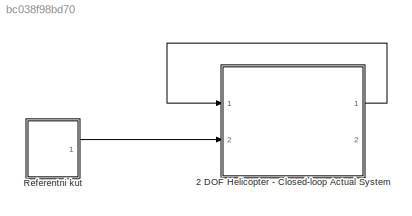
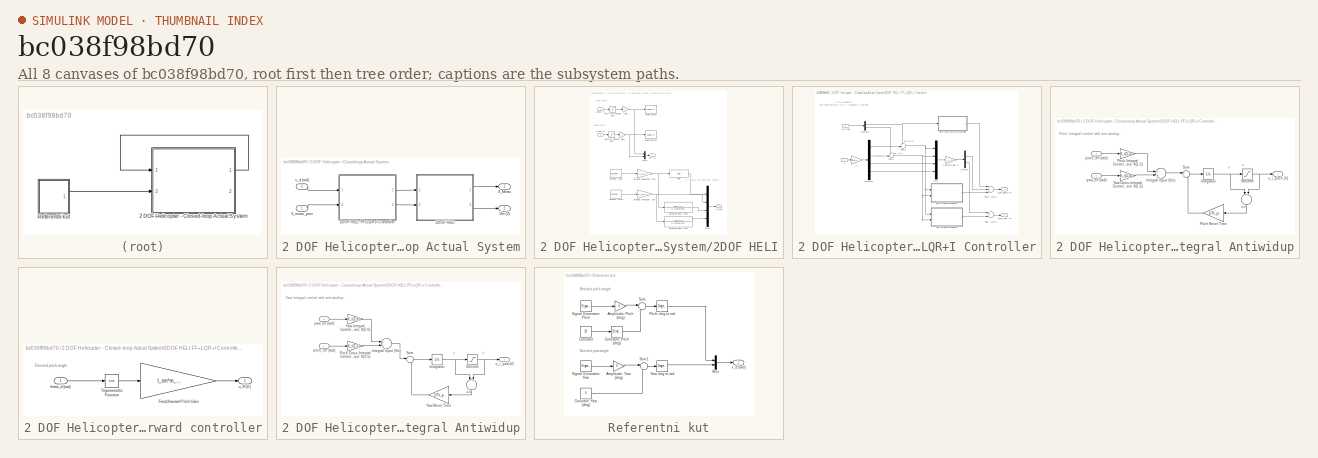
[diagram: thumbnail index - all 8 canvases of the model, root first then tree order]
MODEL slx_bc038f98bd70
KIND model
CONFIG AbsTol = auto
CONFIG EnableMultiTasking = off
CONFIG FixedStep = auto
CONFIG MaxStep = auto
CONFIG MinStep = auto
CONFIG RelTol = 1e-3
CONFIG SampleTimeConstraint = Unconstrained
CONFIG Solver = VariableStepAuto
CONFIG SolverName = VariableStepAuto
CONFIG StartTime = 0.0
CONFIG StopTime = 10.0
BLOCK [SubSystem] 2 DOF Helicopter - Closed-loop Actual System
  Ports = [2, 2]
  RequestExecContextInheritance = off
  Variant = off
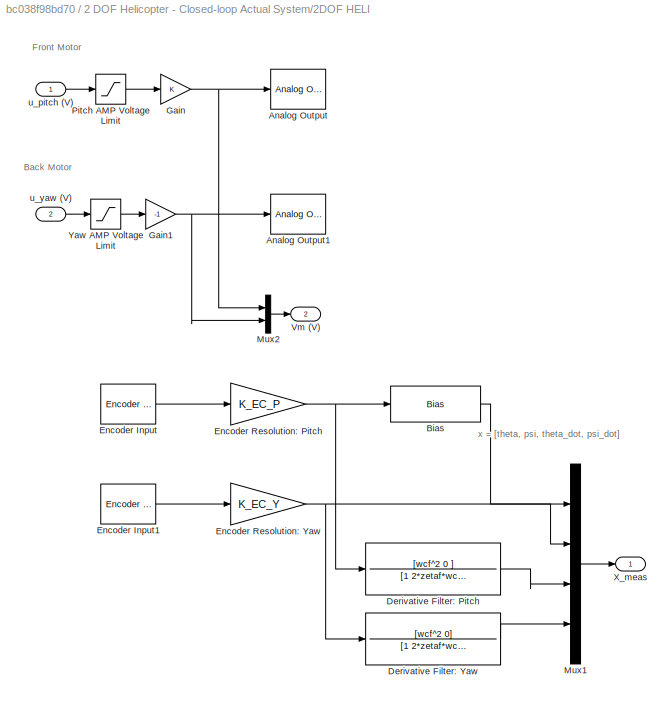
BLOCK [SubSystem] 2 DOF Helicopter - Closed-loop Actual System/2DOF HELI
  Ports = [2, 2]
  RequestExecContextInheritance = off
  Variant = off
BLOCK [Reference] 2 DOF Helicopter - Closed-loop Actual System/2DOF HELI/Analog Output  REF=sldrtlib/Analog Output
  AttributesFormatString = Quanser\nMultiQ-PCI [auto]
  Ports = [1]
  SourceBlock = sldrtlib/Analog Output
  SourceType = Simulink Desktop Real-Time Analog Output
BLOCK [Reference] 2 DOF Helicopter - Closed-loop Actual System/2DOF HELI/Analog Output1  REF=sldrtlib/Analog Output
  AttributesFormatString = Quanser\nMultiQ-PCI [auto]
  Ports = [1]
  SourceBlock = sldrtlib/Analog Output
  SourceType = Simulink Desktop Real-Time Analog Output
BLOCK [Bias] 2 DOF Helicopter - Closed-loop Actual System/2DOF HELI/Bias
  Bias = theta_0
  SaturateOnIntegerOverflow = off
BLOCK [TransferFcn] 2 DOF Helicopter - Closed-loop Actual System/2DOF HELI/Derivative Filter: Pitch
  Denominator = [1 2*zetaf*wcf wcf^2]
  Numerator = [wcf^2 0 ]
BLOCK [TransferFcn] 2 DOF Helicopter - Closed-loop Actual System/2DOF HELI/Derivative Filter: Yaw
  Denominator = [1 2*zetaf*wcf wcf^2]
  Numerator = [wcf^2 0]
BLOCK [Reference] 2 DOF Helicopter - Closed-loop Actual System/2DOF HELI/Encoder Input  REF=sldrtlib/Encoder Input
  AttributesFormatString = Quanser\nMultiQ-PCI [auto]
  Ports = [0, 1]
  SourceBlock = sldrtlib/Encoder Input
  SourceType = Simulink Desktop Real-Time Encoder Input
BLOCK [Reference] 2 DOF Helicopter - Closed-loop Actual System/2DOF HELI/Encoder Input1  REF=sldrtlib/Encoder Input
  AttributesFormatString = Quanser\nMultiQ-PCI [auto]
  Ports = [0, 1]
  SourceBlock = sldrtlib/Encoder Input
  SourceType = Simulink Desktop Real-Time Encoder Input
BLOCK [Gain] 2 DOF Helicopter - Closed-loop Actual System/2DOF HELI/Encoder Resolution: Pitch 
  Gain = K_EC_P
  OutDataTypeStr = Inherit: Inherit via internal rule
  ParamDataTypeStr = Inherit: Inherit via internal rule
  SaturateOnIntegerOverflow = off
BLOCK [Gain] 2 DOF Helicopter - Closed-loop Actual System/2DOF HELI/Encoder Resolution: Yaw
  Gain = K_EC_Y
  OutDataTypeStr = Inherit: Inherit via internal rule
  ParamDataTypeStr = Inherit: Inherit via internal rule
  SaturateOnIntegerOverflow = off
BLOCK [Gain] 2 DOF Helicopter - Closed-loop Actual System/2DOF HELI/Gain
  OutDataTypeStr = Inherit: Inherit via internal rule
  ParamDataTypeStr = Inherit: Inherit via internal rule
  SaturateOnIntegerOverflow = off
BLOCK [Gain] 2 DOF Helicopter - Closed-loop Actual System/2DOF HELI/Gain1
  Gain = -1
  OutDataTypeStr = Inherit: Inherit via internal rule
  ParamDataTypeStr = Inherit: Inherit via internal rule
  SaturateOnIntegerOverflow = off
BLOCK [Mux] 2 DOF Helicopter - Closed-loop Actual System/2DOF HELI/Mux1
  DisplayOption = bar
  Ports = [4, 1]
BLOCK [Mux] 2 DOF Helicopter - Closed-loop Actual System/2DOF HELI/Mux2
  DisplayOption = bar
  Inputs = 2
  Ports = [2, 1]
BLOCK [Saturate] 2 DOF Helicopter - Closed-loop Actual System/2DOF HELI/Pitch AMP Voltage Limit
  InputPortMap = u0
  LowerLimit = - max_u
  Ports = [1, 1]
  UpperLimit = max_u
BLOCK [Outport] 2 DOF Helicopter - Closed-loop Actual System/2DOF HELI/Vm (V)
  IconDisplay = Port number
  Port = 2
BLOCK [Outport] 2 DOF Helicopter - Closed-loop Actual System/2DOF HELI/X_meas
  IconDisplay = Port number
BLOCK [Saturate] 2 DOF Helicopter - Closed-loop Actual System/2DOF HELI/Yaw AMP Voltage Limit
  InputPortMap = u0
  LowerLimit = - max_u
  Ports = [1, 1]
  UpperLimit = max_u
BLOCK [Inport] 2 DOF Helicopter - Closed-loop Actual System/2DOF HELI/u_pitch (V)
  IconDisplay = Port number
BLOCK [Inport] 2 DOF Helicopter - Closed-loop Actual System/2DOF HELI/u_yaw (V)
  IconDisplay = Port number
  Port = 2
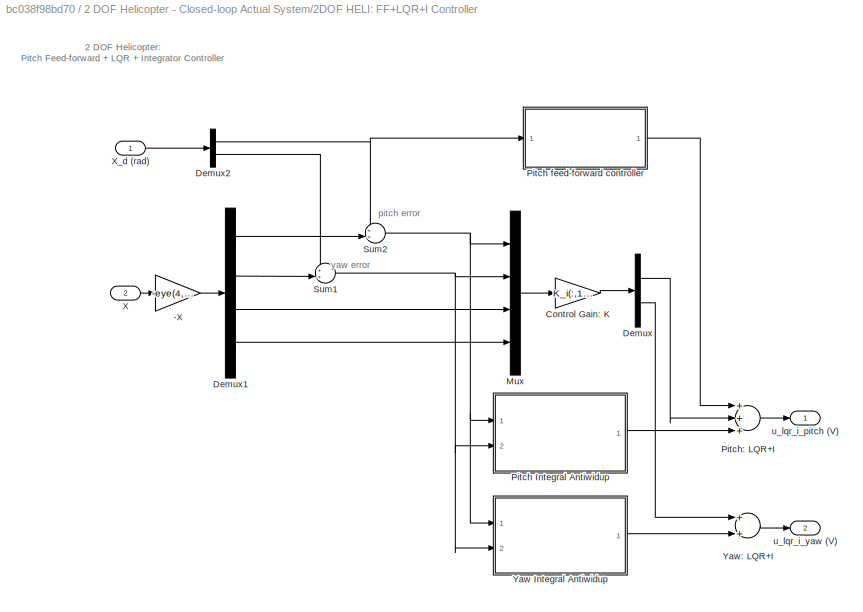
BLOCK [SubSystem] 2 DOF Helicopter - Closed-loop Actual System/2DOF HELI: FF+LQR+I Controller
  Ports = [2, 2]
  RequestExecContextInheritance = off
  Variant = off
BLOCK [Gain] 2 DOF Helicopter - Closed-loop Actual System/2DOF HELI: FF+LQR+I Controller/-X
  Gain = -eye(4,4)
  Multiplication = Matrix(K*u)
  OutDataTypeStr = Inherit: Inherit via internal rule
  ParamDataTypeStr = Inherit: Inherit via internal rule
  SaturateOnIntegerOverflow = off
BLOCK [Gain] 2 DOF Helicopter - Closed-loop Actual System/2DOF HELI: FF+LQR+I Controller/Control Gain: K
  Gain = K_i(:,1:4)
  Multiplication = Matrix(K*u)
  OutDataTypeStr = Inherit: Inherit via internal rule
  ParamDataTypeStr = Inherit: Inherit via internal rule
  SaturateOnIntegerOverflow = off
BLOCK [Demux] 2 DOF Helicopter - Closed-loop Actual System/2DOF HELI: FF+LQR+I Controller/Demux
  DisplayOption = bar
  Outputs = 2
  Ports = [1, 2]
BLOCK [Demux] 2 DOF Helicopter - Closed-loop Actual System/2DOF HELI: FF+LQR+I Controller/Demux1
  DisplayOption = bar
  Ports = [1, 4]
BLOCK [Demux] 2 DOF Helicopter - Closed-loop Actual System/2DOF HELI: FF+LQR+I Controller/Demux2
  DisplayOption = bar
  Outputs = 2
  Ports = [1, 2]
BLOCK [Mux] 2 DOF Helicopter - Closed-loop Actual System/2DOF HELI: FF+LQR+I Controller/Mux
  DisplayOption = bar
  Ports = [4, 1]
BLOCK [SubSystem] 2 DOF Helicopter - Closed-loop Actual System/2DOF HELI: FF+LQR+I Controller/Pitch Integral Antiwidup
  Ports = [2, 1]
  RequestExecContextInheritance = off
  Variant = off
BLOCK [Sum] 2 DOF Helicopter - Closed-loop Actual System/2DOF HELI: FF+LQR+I Controller/Pitch Integral Antiwidup/Integral Input (V//s)
  InputSameDT = off
  OutDataTypeStr = Inherit: Inherit via internal rule
  Ports = [2, 1]
  SaturateOnIntegerOverflow = off
BLOCK [Integrator] 2 DOF Helicopter - Closed-loop Actual System/2DOF HELI: FF+LQR+I Controller/Pitch Integral Antiwidup/Integrator
  Ports = [1, 1]
BLOCK [Gain] 2 DOF Helicopter - Closed-loop Actual System/2DOF HELI: FF+LQR+I Controller/Pitch Integral Antiwidup/Pitch Integral Control Gain: K(1,5)
  Gain = K_i(1,5)
  Multiplication = Matrix(K*u)
  OutDataTypeStr = Inherit: Inherit via internal rule
  ParamDataTypeStr = Inherit: Inherit via internal rule
  SaturateOnIntegerOverflow = off
BLOCK [Gain] 2 DOF Helicopter - Closed-loop Actual System/2DOF HELI: FF+LQR+I Controller/Pitch Integral Antiwidup/Pitch Reset Time
  Gain = 1/Tr_p
  OutDataTypeStr = Inherit: Inherit via internal rule
  ParamDataTypeStr = Inherit: Inherit via internal rule
  SaturateOnIntegerOverflow = off
BLOCK [Saturate] 2 DOF Helicopter - Closed-loop Actual System/2DOF HELI: FF+LQR+I Controller/Pitch Integral Antiwidup/Saturate
  InputPortMap = u0
  LowerLimit = -max_u
  Ports = [1, 1]
  UpperLimit = max_u
BLOCK [Sum] 2 DOF Helicopter - Closed-loop Actual System/2DOF HELI: FF+LQR+I Controller/Pitch Integral Antiwidup/Sum
  IconShape = round
  InputSameDT = off
  Inputs = |++
  OutDataTypeStr = Inherit: Inherit via internal rule
  Ports = [2, 1]
  SaturateOnIntegerOverflow = off
BLOCK [Gain] 2 DOF Helicopter - Closed-loop Actual System/2DOF HELI: FF+LQR+I Controller/Pitch Integral Antiwidup/Yaw Cross-Integral Control Gain: K(1,6)
  Gain = K_i(1,6)
  Multiplication = Matrix(K*u)
  OutDataTypeStr = Inherit: Inherit via internal rule
  ParamDataTypeStr = Inherit: Inherit via internal rule
  SaturateOnIntegerOverflow = off
BLOCK [Inport] 2 DOF Helicopter - Closed-loop Actual System/2DOF HELI: FF+LQR+I Controller/Pitch Integral Antiwidup/pitch_err (rad)
  IconDisplay = Port number
BLOCK [Sum] 2 DOF Helicopter - Closed-loop Actual System/2DOF HELI: FF+LQR+I Controller/Pitch Integral Antiwidup/u-v
  InputSameDT = off
  Inputs = -+
  OutDataTypeStr = Inherit: Inherit via internal rule
  Ports = [2, 1]
  SaturateOnIntegerOverflow = off
BLOCK [Outport] 2 DOF Helicopter - Closed-loop Actual System/2DOF HELI: FF+LQR+I Controller/Pitch Integral Antiwidup/u_i_pitch (V)
  IconDisplay = Port number
BLOCK [Inport] 2 DOF Helicopter - Closed-loop Actual System/2DOF HELI: FF+LQR+I Controller/Pitch Integral Antiwidup/yaw_err (rad)
  IconDisplay = Port number
  Port = 2
BLOCK [SubSystem] 2 DOF Helicopter - Closed-loop Actual System/2DOF HELI: FF+LQR+I Controller/Pitch feed-forward controller
  Ports = [1, 1]
  RequestExecContextInheritance = off
  Variant = off
BLOCK [Gain] 2 DOF Helicopter - Closed-loop Actual System/2DOF HELI: FF+LQR+I Controller/Pitch feed-forward controller/Feed-forward Pitch Gain
  Gain = l_cm*m_heli*g / K_pp
  OutDataTypeStr = Inherit: Inherit via internal rule
  ParamDataTypeStr = Inherit: Inherit via internal rule
  SaturateOnIntegerOverflow = off
BLOCK [Trigonometry] 2 DOF Helicopter - Closed-loop Actual System/2DOF HELI: FF+LQR+I Controller/Pitch feed-forward controller/Trigonometric Function
  Operator = cos
  OutputSignalType = real
  Ports = [1, 1]
BLOCK [Inport] 2 DOF Helicopter - Closed-loop Actual System/2DOF HELI: FF+LQR+I Controller/Pitch feed-forward controller/theta_d (rad)
  IconDisplay = Port number
BLOCK [Outport] 2 DOF Helicopter - Closed-loop Actual System/2DOF HELI: FF+LQR+I Controller/Pitch feed-forward controller/u_ff (V)
  IconDisplay = Port number
BLOCK [Sum] 2 DOF Helicopter - Closed-loop Actual System/2DOF HELI: FF+LQR+I Controller/Pitch: LQR+I
  InputSameDT = off
  Inputs = +++
  OutDataTypeStr = Inherit: Inherit via internal rule
  Ports = [3, 1]
  SaturateOnIntegerOverflow = off
BLOCK [Sum] 2 DOF Helicopter - Closed-loop Actual System/2DOF HELI: FF+LQR+I Controller/Sum1
  IconShape = round
  InputSameDT = off
  Inputs = ++|
  OutDataTypeStr = Inherit: Inherit via internal rule
  Ports = [2, 1]
  SaturateOnIntegerOverflow = off
BLOCK [Sum] 2 DOF Helicopter - Closed-loop Actual System/2DOF HELI: FF+LQR+I Controller/Sum2
  IconShape = round
  InputSameDT = off
  Inputs = ++|
  OutDataTypeStr = Inherit: Inherit via internal rule
  Ports = [2, 1]
  SaturateOnIntegerOverflow = off
BLOCK [Inport] 2 DOF Helicopter - Closed-loop Actual System/2DOF HELI: FF+LQR+I Controller/X
  IconDisplay = Port number
  Port = 2
BLOCK [Inport] 2 DOF Helicopter - Closed-loop Actual System/2DOF HELI: FF+LQR+I Controller/X_d (rad)
  IconDisplay = Port number
BLOCK [SubSystem] 2 DOF Helicopter - Closed-loop Actual System/2DOF HELI: FF+LQR+I Controller/Yaw Integral Antiwidup
  Ports = [2, 1]
  RequestExecContextInheritance = off
  Variant = off
BLOCK [Sum] 2 DOF Helicopter - Closed-loop Actual System/2DOF HELI: FF+LQR+I Controller/Yaw Integral Antiwidup/Integral Input (V//s)
  InputSameDT = off
  OutDataTypeStr = Inherit: Inherit via internal rule
  Ports = [2, 1]
  SaturateOnIntegerOverflow = off
BLOCK [Integrator] 2 DOF Helicopter - Closed-loop Actual System/2DOF HELI: FF+LQR+I Controller/Yaw Integral Antiwidup/Integrator
  Ports = [1, 1]
BLOCK [Gain] 2 DOF Helicopter - Closed-loop Actual System/2DOF HELI: FF+LQR+I Controller/Yaw Integral Antiwidup/Pitch Cross-Integral Control Gain: K(2,5)
  Gain = K_i(2,5)
  Multiplication = Matrix(K*u)
  OutDataTypeStr = Inherit: Inherit via internal rule
  ParamDataTypeStr = Inherit: Inherit via internal rule
  SaturateOnIntegerOverflow = off
BLOCK [Saturate] 2 DOF Helicopter - Closed-loop Actual System/2DOF HELI: FF+LQR+I Controller/Yaw Integral Antiwidup/Saturate
  InputPortMap = u0
  LowerLimit = -max_u
  Ports = [1, 1]
  UpperLimit = max_u
BLOCK [Sum] 2 DOF Helicopter - Closed-loop Actual System/2DOF HELI: FF+LQR+I Controller/Yaw Integral Antiwidup/Sum
  IconShape = round
  InputSameDT = off
  Inputs = |++
  OutDataTypeStr = Inherit: Inherit via internal rule
  Ports = [2, 1]
  SaturateOnIntegerOverflow = off
BLOCK [Gain] 2 DOF Helicopter - Closed-loop Actual System/2DOF HELI: FF+LQR+I Controller/Yaw Integral Antiwidup/Yaw Integral Control Gain: K(2,6)
  Gain = K_i(2,6)
  Multiplication = Matrix(K*u)
  OutDataTypeStr = Inherit: Inherit via internal rule
  ParamDataTypeStr = Inherit: Inherit via internal rule
  SaturateOnIntegerOverflow = off
BLOCK [Gain] 2 DOF Helicopter - Closed-loop Actual System/2DOF HELI: FF+LQR+I Controller/Yaw Integral Antiwidup/Yaw Reset Time
  Gain = 1/Tr_y
  OutDataTypeStr = Inherit: Inherit via internal rule
  ParamDataTypeStr = Inherit: Inherit via internal rule
  SaturateOnIntegerOverflow = off
BLOCK [Inport] 2 DOF Helicopter - Closed-loop Actual System/2DOF HELI: FF+LQR+I Controller/Yaw Integral Antiwidup/pitch_err (rad)
  IconDisplay = Port number
BLOCK [Sum] 2 DOF Helicopter - Closed-loop Actual System/2DOF HELI: FF+LQR+I Controller/Yaw Integral Antiwidup/u-v
  InputSameDT = off
  Inputs = -+
  OutDataTypeStr = Inherit: Inherit via internal rule
  Ports = [2, 1]
  SaturateOnIntegerOverflow = off
BLOCK [Outport] 2 DOF Helicopter - Closed-loop Actual System/2DOF HELI: FF+LQR+I Controller/Yaw Integral Antiwidup/u_i_yaw (V)
  IconDisplay = Port number
BLOCK [Inport] 2 DOF Helicopter - Closed-loop Actual System/2DOF HELI: FF+LQR+I Controller/Yaw Integral Antiwidup/yaw_err (rad)
  IconDisplay = Port number
  Port = 2
BLOCK [Sum] 2 DOF Helicopter - Closed-loop Actual System/2DOF HELI: FF+LQR+I Controller/Yaw: LQR+I
  InputSameDT = off
  OutDataTypeStr = Inherit: Inherit via internal rule
  Ports = [2, 1]
  SaturateOnIntegerOverflow = off
BLOCK [Outport] 2 DOF Helicopter - Closed-loop Actual System/2DOF HELI: FF+LQR+I Controller/u_lqr_i_pitch (V)
  IconDisplay = Port number
BLOCK [Outport] 2 DOF Helicopter - Closed-loop Actual System/2DOF HELI: FF+LQR+I Controller/u_lqr_i_yaw (V)
  IconDisplay = Port number
  Port = 2
BLOCK [Outport] 2 DOF Helicopter - Closed-loop Actual System/Vm (V)
  IconDisplay = Port number
  Port = 2
BLOCK [Outport] 2 DOF Helicopter - Closed-loop Actual System/X_Meas
  IconDisplay = Port number
BLOCK [Inport] 2 DOF Helicopter - Closed-loop Actual System/X_meas_prev
  IconDisplay = Port number
BLOCK [Inport] 2 DOF Helicopter - Closed-loop Actual System/x_d (rad)
  IconDisplay = Port number
  Port = 2
BLOCK [SubSystem] Referentni kut
  Ports = [0, 1]
  RequestExecContextInheritance = off
  Variant = off
BLOCK [Gain] Referentni kut/Amplitude: Pitch (deg)
  Gain = 0
  OutDataTypeStr = Inherit: Inherit via internal rule
  ParamDataTypeStr = Inherit: Inherit via internal rule
  SaturateOnIntegerOverflow = off
BLOCK [Gain] Referentni kut/Amplitude: Yaw (deg)
  Gain = 0
  OutDataTypeStr = Inherit: Inherit via internal rule
  ParamDataTypeStr = Inherit: Inherit via internal rule
  SaturateOnIntegerOverflow = off
BLOCK [Constant] Referentni kut/Constant
  Value = 20
BLOCK [Reference] Referentni kut/Constant: Pitch (deg)  REF=simulink/Math
Operations/Slider
Gain
  Ports = [1, 1]
  SourceBlock = simulink/Math\nOperations/Slider\nGain
  SourceType = Slider Gain
BLOCK [Constant] Referentni kut/Constant: Yaw (deg)
  Value = 0
BLOCK [Mux] Referentni kut/Mux
  DisplayOption = bar
  Inputs = 2
  Ports = [2, 1]
BLOCK [Reference] Referentni kut/Pitch: deg to rad  REF=simulink_extras/Transformations/Degrees to
Radians
  Ports = [1, 1]
  SourceBlock = simulink_extras/Transformations/Degrees to\nRadians
  SourceType = DegreesToRadians
BLOCK [SignalGenerator] Referentni kut/Signal Generator: Pitch
  Amplitude = 15
  Frequency = 0.05
  Ports = [0, 1]
  WaveForm = square
BLOCK [SignalGenerator] Referentni kut/Signal Generator: Yaw
  Amplitude = 30
  Frequency = 0.05
  Ports = [0, 1]
  WaveForm = square
BLOCK [Sum] Referentni kut/Sum
  IconShape = round
  InputSameDT = off
  Inputs = |++
  OutDataTypeStr = Inherit: Inherit via internal rule
  Ports = [2, 1]
  SaturateOnIntegerOverflow = off
BLOCK [Sum] Referentni kut/Sum1
  IconShape = round
  InputSameDT = off
  Inputs = |++
  OutDataTypeStr = Inherit: Inherit via internal rule
  Ports = [2, 1]
  SaturateOnIntegerOverflow = off
BLOCK [Reference] Referentni kut/Yaw: deg to rad  REF=simulink_extras/Transformations/Degrees to
Radians
  Ports = [1, 1]
  SourceBlock = simulink_extras/Transformations/Degrees to\nRadians
  SourceType = DegreesToRadians
BLOCK [Outport] Referentni kut/x_d (rad)
  IconDisplay = Port number
ANNOTATION 2 DOF Helicopter - Closed-loop Actual System/2DOF HELI: Back Motor
ANNOTATION 2 DOF Helicopter - Closed-loop Actual System/2DOF HELI: Front Motor
ANNOTATION 2 DOF Helicopter - Closed-loop Actual System/2DOF HELI: x = [theta, psi, theta_dot, psi_dot]
ANNOTATION 2 DOF Helicopter - Closed-loop Actual System/2DOF HELI: FF+LQR+I Controller: 2 DOF Helicopter: Pitch Feed-forward + LQR + Integrator Controller
ANNOTATION 2 DOF Helicopter - Closed-loop Actual System/2DOF HELI: FF+LQR+I Controller: pitch error
ANNOTATION 2 DOF Helicopter - Closed-loop Actual System/2DOF HELI: FF+LQR+I Controller: yaw error
ANNOTATION 2 DOF Helicopter - Closed-loop Actual System/2DOF HELI: FF+LQR+I Controller/Pitch Integral Antiwidup: Pitch: Integral control with anti-windup.
ANNOTATION 2 DOF Helicopter - Closed-loop Actual System/2DOF HELI: FF+LQR+I Controller/Pitch Integral Antiwidup: u
ANNOTATION 2 DOF Helicopter - Closed-loop Actual System/2DOF HELI: FF+LQR+I Controller/Pitch Integral Antiwidup: v
ANNOTATION 2 DOF Helicopter - Closed-loop Actual System/2DOF HELI: FF+LQR+I Controller/Pitch feed-forward controller: Desired pitch angle
ANNOTATION 2 DOF Helicopter - Closed-loop Actual System/2DOF HELI: FF+LQR+I Controller/Yaw Integral Antiwidup: Yaw: Integral control with anti-windup.
ANNOTATION 2 DOF Helicopter - Closed-loop Actual System/2DOF HELI: FF+LQR+I Controller/Yaw Integral Antiwidup: u
ANNOTATION 2 DOF Helicopter - Closed-loop Actual System/2DOF HELI: FF+LQR+I Controller/Yaw Integral Antiwidup: v
ANNOTATION Referentni kut: Desired pitch angle
ANNOTATION Referentni kut: Desired yaw angle
LINE 2 DOF Helicopter - Closed-loop Actual System/2DOF HELI/Bias:1 -> 2 DOF Helicopter - Closed-loop Actual System/2DOF HELI/Mux1:1
LINE 2 DOF Helicopter - Closed-loop Actual System/2DOF HELI/Derivative Filter: Pitch:1 -> 2 DOF Helicopter - Closed-loop Actual System/2DOF HELI/Mux1:3
LINE 2 DOF Helicopter - Closed-loop Actual System/2DOF HELI/Derivative Filter: Yaw:1 -> 2 DOF Helicopter - Closed-loop Actual System/2DOF HELI/Mux1:4
LINE 2 DOF Helicopter - Closed-loop Actual System/2DOF HELI/Encoder Input1:1 -> 2 DOF Helicopter - Closed-loop Actual System/2DOF HELI/Encoder Resolution: Yaw:1
LINE 2 DOF Helicopter - Closed-loop Actual System/2DOF HELI/Encoder Input:1 -> 2 DOF Helicopter - Closed-loop Actual System/2DOF HELI/Encoder Resolution: Pitch :1
NET 2 DOF Helicopter - Closed-loop Actual System/2DOF HELI/Encoder Resolution: Pitch :1 -> 2 DOF Helicopter - Closed-loop Actual System/2DOF HELI/Bias:1, 2 DOF Helicopter - Closed-loop Actual System/2DOF HELI/Derivative Filter: Pitch:1
NET 2 DOF Helicopter - Closed-loop Actual System/2DOF HELI/Encoder Resolution: Yaw:1 -> 2 DOF Helicopter - Closed-loop Actual System/2DOF HELI/Derivative Filter: Yaw:1, 2 DOF Helicopter - Closed-loop Actual System/2DOF HELI/Mux1:2
NET 2 DOF Helicopter - Closed-loop Actual System/2DOF HELI/Gain1:1 -> 2 DOF Helicopter - Closed-loop Actual System/2DOF HELI/Analog Output1:1, 2 DOF Helicopter - Closed-loop Actual System/2DOF HELI/Mux2:2
NET 2 DOF Helicopter - Closed-loop Actual System/2DOF HELI/Gain:1 -> 2 DOF Helicopter - Closed-loop Actual System/2DOF HELI/Analog Output:1, 2 DOF Helicopter - Closed-loop Actual System/2DOF HELI/Mux2:1
LINE 2 DOF Helicopter - Closed-loop Actual System/2DOF HELI/Mux1:1 -> 2 DOF Helicopter - Closed-loop Actual System/2DOF HELI/X_meas:1
LINE 2 DOF Helicopter - Closed-loop Actual System/2DOF HELI/Mux2:1 -> 2 DOF Helicopter - Closed-loop Actual System/2DOF HELI/Vm (V):1
LINE 2 DOF Helicopter - Closed-loop Actual System/2DOF HELI/Pitch AMP Voltage Limit:1 -> 2 DOF Helicopter - Closed-loop Actual System/2DOF HELI/Gain:1
LINE 2 DOF Helicopter - Closed-loop Actual System/2DOF HELI/Yaw AMP Voltage Limit:1 -> 2 DOF Helicopter - Closed-loop Actual System/2DOF HELI/Gain1:1
LINE 2 DOF Helicopter - Closed-loop Actual System/2DOF HELI/u_pitch (V):1 -> 2 DOF Helicopter - Closed-loop Actual System/2DOF HELI/Pitch AMP Voltage Limit:1
LINE 2 DOF Helicopter - Closed-loop Actual System/2DOF HELI/u_yaw (V):1 -> 2 DOF Helicopter - Closed-loop Actual System/2DOF HELI/Yaw AMP Voltage Limit:1
LINE 2 DOF Helicopter - Closed-loop Actual System/2DOF HELI: FF+LQR+I Controller/-X:1 -> 2 DOF Helicopter - Closed-loop Actual System/2DOF HELI: FF+LQR+I Controller/Demux1:1
LINE 2 DOF Helicopter - Closed-loop Actual System/2DOF HELI: FF+LQR+I Controller/Control Gain: K:1 -> 2 DOF Helicopter - Closed-loop Actual System/2DOF HELI: FF+LQR+I Controller/Demux:1
LINE 2 DOF Helicopter - Closed-loop Actual System/2DOF HELI: FF+LQR+I Controller/Demux1:1 -> 2 DOF Helicopter - Closed-loop Actual System/2DOF HELI: FF+LQR+I Controller/Sum2:2
LINE 2 DOF Helicopter - Closed-loop Actual System/2DOF HELI: FF+LQR+I Controller/Demux1:2 -> 2 DOF Helicopter - Closed-loop Actual System/2DOF HELI: FF+LQR+I Controller/Sum1:2
LINE 2 DOF Helicopter - Closed-loop Actual System/2DOF HELI: FF+LQR+I Controller/Demux1:3 -> 2 DOF Helicopter - Closed-loop Actual System/2DOF HELI: FF+LQR+I Controller/Mux:3
LINE 2 DOF Helicopter - Closed-loop Actual System/2DOF HELI: FF+LQR+I Controller/Demux1:4 -> 2 DOF Helicopter - Closed-loop Actual System/2DOF HELI: FF+LQR+I Controller/Mux:4
NET 2 DOF Helicopter - Closed-loop Actual System/2DOF HELI: FF+LQR+I Controller/Demux2:1 -> 2 DOF Helicopter - Closed-loop Actual System/2DOF HELI: FF+LQR+I Controller/Pitch feed-forward controller:1, 2 DOF Helicopter - Closed-loop Actual System/2DOF HELI: FF+LQR+I Controller/Sum2:1
LINE 2 DOF Helicopter - Closed-loop Actual System/2DOF HELI: FF+LQR+I Controller/Demux2:2 -> 2 DOF Helicopter - Closed-loop Actual System/2DOF HELI: FF+LQR+I Controller/Sum1:1
LINE 2 DOF Helicopter - Closed-loop Actual System/2DOF HELI: FF+LQR+I Controller/Demux:1 -> 2 DOF Helicopter - Closed-loop Actual System/2DOF HELI: FF+LQR+I Controller/Pitch: LQR+I:2
LINE 2 DOF Helicopter - Closed-loop Actual System/2DOF HELI: FF+LQR+I Controller/Demux:2 -> 2 DOF Helicopter - Closed-loop Actual System/2DOF HELI: FF+LQR+I Controller/Yaw: LQR+I:1
LINE 2 DOF Helicopter - Closed-loop Actual System/2DOF HELI: FF+LQR+I Controller/Mux:1 -> 2 DOF Helicopter - Closed-loop Actual System/2DOF HELI: FF+LQR+I Controller/Control Gain: K:1
LINE 2 DOF Helicopter - Closed-loop Actual System/2DOF HELI: FF+LQR+I Controller/Pitch Integral Antiwidup/Integral Input (V//s):1 -> 2 DOF Helicopter - Closed-loop Actual System/2DOF HELI: FF+LQR+I Controller/Pitch Integral Antiwidup/Sum:1
NET 2 DOF Helicopter - Closed-loop Actual System/2DOF HELI: FF+LQR+I Controller/Pitch Integral Antiwidup/Integrator:1 -> 2 DOF Helicopter - Closed-loop Actual System/2DOF HELI: FF+LQR+I Controller/Pitch Integral Antiwidup/Saturate:1, 2 DOF Helicopter - Closed-loop Actual System/2DOF HELI: FF+LQR+I Controller/Pitch Integral Antiwidup/u-v:1
LINE 2 DOF Helicopter - Closed-loop Actual System/2DOF HELI: FF+LQR+I Controller/Pitch Integral Antiwidup/Pitch Integral Control Gain: K(1,5):1 -> 2 DOF Helicopter - Closed-loop Actual System/2DOF HELI: FF+LQR+I Controller/Pitch Integral Antiwidup/Integral Input (V//s):1
LINE 2 DOF Helicopter - Closed-loop Actual System/2DOF HELI: FF+LQR+I Controller/Pitch Integral Antiwidup/Pitch Reset Time:1 -> 2 DOF Helicopter - Closed-loop Actual System/2DOF HELI: FF+LQR+I Controller/Pitch Integral Antiwidup/Sum:2
NET 2 DOF Helicopter - Closed-loop Actual System/2DOF HELI: FF+LQR+I Controller/Pitch Integral Antiwidup/Saturate:1 -> 2 DOF Helicopter - Closed-loop Actual System/2DOF HELI: FF+LQR+I Controller/Pitch Integral Antiwidup/u-v:2, 2 DOF Helicopter - Closed-loop Actual System/2DOF HELI: FF+LQR+I Controller/Pitch Integral Antiwidup/u_i_pitch (V):1
LINE 2 DOF Helicopter - Closed-loop Actual System/2DOF HELI: FF+LQR+I Controller/Pitch Integral Antiwidup/Sum:1 -> 2 DOF Helicopter - Closed-loop Actual System/2DOF HELI: FF+LQR+I Controller/Pitch Integral Antiwidup/Integrator:1
LINE 2 DOF Helicopter - Closed-loop Actual System/2DOF HELI: FF+LQR+I Controller/Pitch Integral Antiwidup/Yaw Cross-Integral Control Gain: K(1,6):1 -> 2 DOF Helicopter - Closed-loop Actual System/2DOF HELI: FF+LQR+I Controller/Pitch Integral Antiwidup/Integral Input (V//s):2
LINE 2 DOF Helicopter - Closed-loop Actual System/2DOF HELI: FF+LQR+I Controller/Pitch Integral Antiwidup/pitch_err (rad):1 -> 2 DOF Helicopter - Closed-loop Actual System/2DOF HELI: FF+LQR+I Controller/Pitch Integral Antiwidup/Pitch Integral Control Gain: K(1,5):1
LINE 2 DOF Helicopter - Closed-loop Actual System/2DOF HELI: FF+LQR+I Controller/Pitch Integral Antiwidup/u-v:1 -> 2 DOF Helicopter - Closed-loop Actual System/2DOF HELI: FF+LQR+I Controller/Pitch Integral Antiwidup/Pitch Reset Time:1
LINE 2 DOF Helicopter - Closed-loop Actual System/2DOF HELI: FF+LQR+I Controller/Pitch Integral Antiwidup/yaw_err (rad):1 -> 2 DOF Helicopter - Closed-loop Actual System/2DOF HELI: FF+LQR+I Controller/Pitch Integral Antiwidup/Yaw Cross-Integral Control Gain: K(1,6):1
LINE 2 DOF Helicopter - Closed-loop Actual System/2DOF HELI: FF+LQR+I Controller/Pitch Integral Antiwidup:1 -> 2 DOF Helicopter - Closed-loop Actual System/2DOF HELI: FF+LQR+I Controller/Pitch: LQR+I:3
LINE 2 DOF Helicopter - Closed-loop Actual System/2DOF HELI: FF+LQR+I Controller/Pitch feed-forward controller/Feed-forward Pitch Gain:1 -> 2 DOF Helicopter - Closed-loop Actual System/2DOF HELI: FF+LQR+I Controller/Pitch feed-forward controller/u_ff (V):1
LINE 2 DOF Helicopter - Closed-loop Actual System/2DOF HELI: FF+LQR+I Controller/Pitch feed-forward controller/Trigonometric Function:1 -> 2 DOF Helicopter - Closed-loop Actual System/2DOF HELI: FF+LQR+I Controller/Pitch feed-forward controller/Feed-forward Pitch Gain:1
LINE 2 DOF Helicopter - Closed-loop Actual System/2DOF HELI: FF+LQR+I Controller/Pitch feed-forward controller/theta_d (rad):1 -> 2 DOF Helicopter - Closed-loop Actual System/2DOF HELI: FF+LQR+I Controller/Pitch feed-forward controller/Trigonometric Function:1
LINE 2 DOF Helicopter - Closed-loop Actual System/2DOF HELI: FF+LQR+I Controller/Pitch feed-forward controller:1 -> 2 DOF Helicopter - Closed-loop Actual System/2DOF HELI: FF+LQR+I Controller/Pitch: LQR+I:1
LINE 2 DOF Helicopter - Closed-loop Actual System/2DOF HELI: FF+LQR+I Controller/Pitch: LQR+I:1 -> 2 DOF Helicopter - Closed-loop Actual System/2DOF HELI: FF+LQR+I Controller/u_lqr_i_pitch (V):1
NET 2 DOF Helicopter - Closed-loop Actual System/2DOF HELI: FF+LQR+I Controller/Sum1:1 -> 2 DOF Helicopter - Closed-loop Actual System/2DOF HELI: FF+LQR+I Controller/Mux:2, 2 DOF Helicopter - Closed-loop Actual System/2DOF HELI: FF+LQR+I Controller/Pitch Integral Antiwidup:2, 2 DOF Helicopter - Closed-loop Actual System/2DOF HELI: FF+LQR+I Controller/Yaw Integral Antiwidup:2
NET 2 DOF Helicopter - Closed-loop Actual System/2DOF HELI: FF+LQR+I Controller/Sum2:1 -> 2 DOF Helicopter - Closed-loop Actual System/2DOF HELI: FF+LQR+I Controller/Mux:1, 2 DOF Helicopter - Closed-loop Actual System/2DOF HELI: FF+LQR+I Controller/Pitch Integral Antiwidup:1, 2 DOF Helicopter - Closed-loop Actual System/2DOF HELI: FF+LQR+I Controller/Yaw Integral Antiwidup:1
LINE 2 DOF Helicopter - Closed-loop Actual System/2DOF HELI: FF+LQR+I Controller/X:1 -> 2 DOF Helicopter - Closed-loop Actual System/2DOF HELI: FF+LQR+I Controller/-X:1
LINE 2 DOF Helicopter - Closed-loop Actual System/2DOF HELI: FF+LQR+I Controller/X_d (rad):1 -> 2 DOF Helicopter - Closed-loop Actual System/2DOF HELI: FF+LQR+I Controller/Demux2:1
LINE 2 DOF Helicopter - Closed-loop Actual System/2DOF HELI: FF+LQR+I Controller/Yaw Integral Antiwidup/Integral Input (V//s):1 -> 2 DOF Helicopter - Closed-loop Actual System/2DOF HELI: FF+LQR+I Controller/Yaw Integral Antiwidup/Sum:1
NET 2 DOF Helicopter - Closed-loop Actual System/2DOF HELI: FF+LQR+I Controller/Yaw Integral Antiwidup/Integrator:1 -> 2 DOF Helicopter - Closed-loop Actual System/2DOF HELI: FF+LQR+I Controller/Yaw Integral Antiwidup/Saturate:1, 2 DOF Helicopter - Closed-loop Actual System/2DOF HELI: FF+LQR+I Controller/Yaw Integral Antiwidup/u-v:1
LINE 2 DOF Helicopter - Closed-loop Actual System/2DOF HELI: FF+LQR+I Controller/Yaw Integral Antiwidup/Pitch Cross-Integral Control Gain: K(2,5):1 -> 2 DOF Helicopter - Closed-loop Actual System/2DOF HELI: FF+LQR+I Controller/Yaw Integral Antiwidup/Integral Input (V//s):2
NET 2 DOF Helicopter - Closed-loop Actual System/2DOF HELI: FF+LQR+I Controller/Yaw Integral Antiwidup/Saturate:1 -> 2 DOF Helicopter - Closed-loop Actual System/2DOF HELI: FF+LQR+I Controller/Yaw Integral Antiwidup/u-v:2, 2 DOF Helicopter - Closed-loop Actual System/2DOF HELI: FF+LQR+I Controller/Yaw Integral Antiwidup/u_i_yaw (V):1
LINE 2 DOF Helicopter - Closed-loop Actual System/2DOF HELI: FF+LQR+I Controller/Yaw Integral Antiwidup/Sum:1 -> 2 DOF Helicopter - Closed-loop Actual System/2DOF HELI: FF+LQR+I Controller/Yaw Integral Antiwidup/Integrator:1
LINE 2 DOF Helicopter - Closed-loop Actual System/2DOF HELI: FF+LQR+I Controller/Yaw Integral Antiwidup/Yaw Integral Control Gain: K(2,6):1 -> 2 DOF Helicopter - Closed-loop Actual System/2DOF HELI: FF+LQR+I Controller/Yaw Integral Antiwidup/Integral Input (V//s):1
LINE 2 DOF Helicopter - Closed-loop Actual System/2DOF HELI: FF+LQR+I Controller/Yaw Integral Antiwidup/Yaw Reset Time:1 -> 2 DOF Helicopter - Closed-loop Actual System/2DOF HELI: FF+LQR+I Controller/Yaw Integral Antiwidup/Sum:2
LINE 2 DOF Helicopter - Closed-loop Actual System/2DOF HELI: FF+LQR+I Controller/Yaw Integral Antiwidup/pitch_err (rad):1 -> 2 DOF Helicopter - Closed-loop Actual System/2DOF HELI: FF+LQR+I Controller/Yaw Integral Antiwidup/Pitch Cross-Integral Control Gain: K(2,5):1
LINE 2 DOF Helicopter - Closed-loop Actual System/2DOF HELI: FF+LQR+I Controller/Yaw Integral Antiwidup/u-v:1 -> 2 DOF Helicopter - Closed-loop Actual System/2DOF HELI: FF+LQR+I Controller/Yaw Integral Antiwidup/Yaw Reset Time:1
LINE 2 DOF Helicopter - Closed-loop Actual System/2DOF HELI: FF+LQR+I Controller/Yaw Integral Antiwidup/yaw_err (rad):1 -> 2 DOF Helicopter - Closed-loop Actual System/2DOF HELI: FF+LQR+I Controller/Yaw Integral Antiwidup/Yaw Integral Control Gain: K(2,6):1
LINE 2 DOF Helicopter - Closed-loop Actual System/2DOF HELI: FF+LQR+I Controller/Yaw Integral Antiwidup:1 -> 2 DOF Helicopter - Closed-loop Actual System/2DOF HELI: FF+LQR+I Controller/Yaw: LQR+I:2
LINE 2 DOF Helicopter - Closed-loop Actual System/2DOF HELI: FF+LQR+I Controller/Yaw: LQR+I:1 -> 2 DOF Helicopter - Closed-loop Actual System/2DOF HELI: FF+LQR+I Controller/u_lqr_i_yaw (V):1
LINE 2 DOF Helicopter - Closed-loop Actual System/2DOF HELI: FF+LQR+I Controller:1 -> 2 DOF Helicopter - Closed-loop Actual System/2DOF HELI:1
LINE 2 DOF Helicopter - Closed-loop Actual System/2DOF HELI: FF+LQR+I Controller:2 -> 2 DOF Helicopter - Closed-loop Actual System/2DOF HELI:2
LINE 2 DOF Helicopter - Closed-loop Actual System/2DOF HELI:1 -> 2 DOF Helicopter - Closed-loop Actual System/X_Meas:1
LINE 2 DOF Helicopter - Closed-loop Actual System/2DOF HELI:2 -> 2 DOF Helicopter - Closed-loop Actual System/Vm (V):1
LINE 2 DOF Helicopter - Closed-loop Actual System/X_meas_prev:1 -> 2 DOF Helicopter - Closed-loop Actual System/2DOF HELI: FF+LQR+I Controller:2
LINE 2 DOF Helicopter - Closed-loop Actual System/x_d (rad):1 -> 2 DOF Helicopter - Closed-loop Actual System/2DOF HELI: FF+LQR+I Controller:1
LINE 2 DOF Helicopter - Closed-loop Actual System:1 -> 2 DOF Helicopter - Closed-loop Actual System:1
LINE Referentni kut/Amplitude: Pitch (deg):1 -> Referentni kut/Sum:1
LINE Referentni kut/Amplitude: Yaw (deg):1 -> Referentni kut/Sum1:1
LINE Referentni kut/Constant: Pitch (deg):1 -> Referentni kut/Sum:2
LINE Referentni kut/Constant: Yaw (deg):1 -> Referentni kut/Sum1:2
LINE Referentni kut/Constant:1 -> Referentni kut/Constant: Pitch (deg):1
LINE Referentni kut/Mux:1 -> Referentni kut/x_d (rad):1
LINE Referentni kut/Pitch: deg to rad:1 -> Referentni kut/Mux:1
LINE Referentni kut/Signal Generator: Pitch:1 -> Referentni kut/Amplitude: Pitch (deg):1
LINE Referentni kut/Signal Generator: Yaw:1 -> Referentni kut/Amplitude: Yaw (deg):1
LINE Referentni kut/Sum1:1 -> Referentni kut/Yaw: deg to rad:1
LINE Referentni kut/Sum:1 -> Referentni kut/Pitch: deg to rad:1
LINE Referentni kut/Yaw: deg to rad:1 -> Referentni kut/Mux:2
LINE Referentni kut:1 -> 2 DOF Helicopter - Closed-loop Actual System:2
note: NET lines group one-source signal fan-out (src -> all destinations, sorted); 1:1 wires keep LINE
